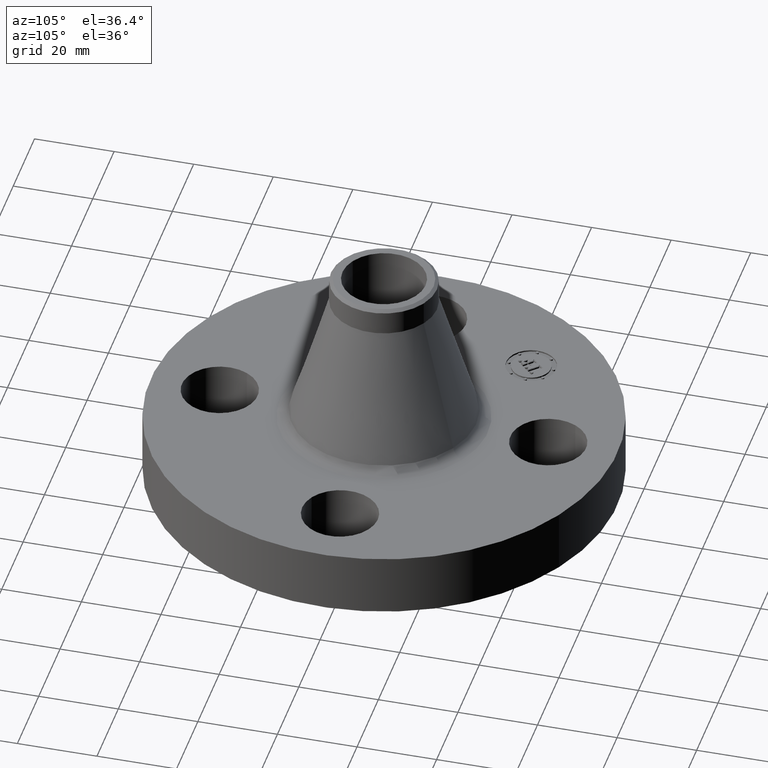
[diagram: clean part render]
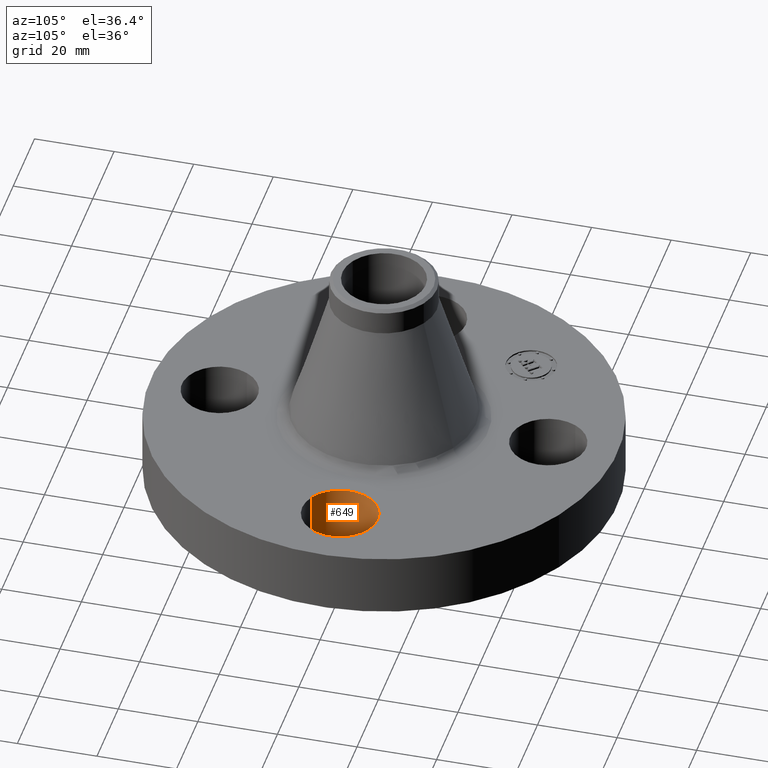
[diagram: same view with one face highlighted and labeled with its STEP entity id]
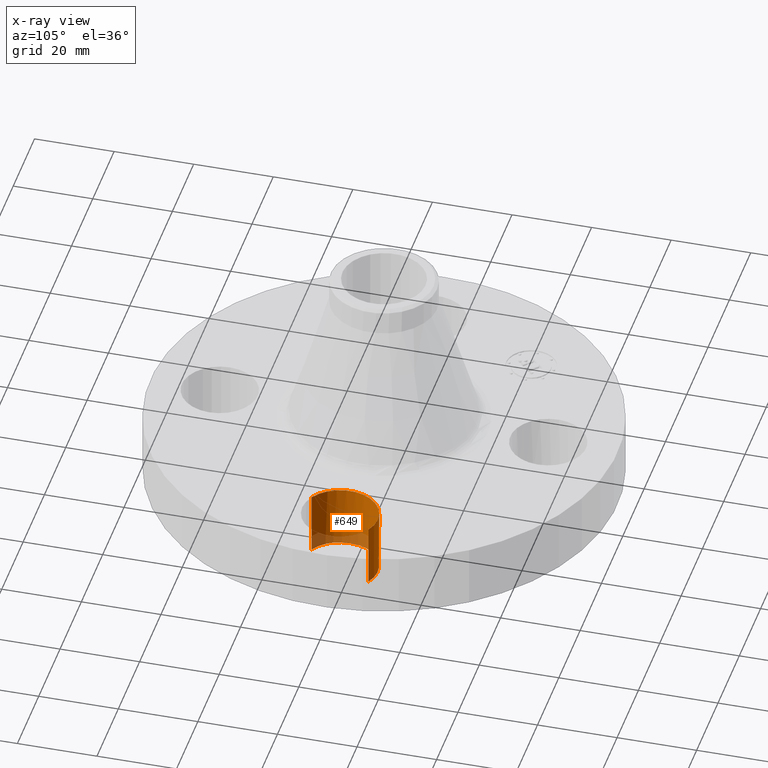
[diagram: x-ray of the same camera — body ghosted, the highlighted face saturated]
A machine part, auxiliary view. The second image highlights one B-rep face of the part: STEP entity #649.
The next image is the same camera in x-ray: the body ghosted, the highlighted face saturated — about 15% of this face is hidden behind the body in this view.
In plain terms, the highlighted cylindrical surface (partial cylindrical patch) has radius 9.525 mm, axis along (0, -0, -1).
Its self-contained STEP definition (entity closure, byte-faithful):
#549=AXIS2_PLACEMENT_3D('Circle Axis2P3D',#547,#548,$) ;
#563=AXIS2_PLACEMENT_3D('Circle Axis2P3D',#561,#562,$) ;
#609=AXIS2_PLACEMENT_3D('Cylinder Axis2P3D',#606,#607,#608) ;
#639=AXIS2_PLACEMENT_3D('Circle Axis2P3D',#637,#638,$) ;
#495=CARTESIAN_POINT('Vertex',(1.25000000001,-1.39870617276E-016,0.)) ;
#547=CARTESIAN_POINT('Axis2P3D Location',(1.62500000001,-1.39870617276E-016,0.)) ;
#551=CARTESIAN_POINT('Vertex',(1.44521542303,-0.32909346071,0.)) ;
#558=CARTESIAN_POINT('Vertex',(1.80478457698,0.32909346071,0.)) ;
#561=CARTESIAN_POINT('Axis2P3D Location',(1.62500000001,-1.39870617276E-016,0.)) ;
#606=CARTESIAN_POINT('Axis2P3D Location',(1.62500000001,-1.8023868212E-016,0.616062992128)) ;
#611=CARTESIAN_POINT('Line Origine',(1.80478457698,0.32909346071,0.310000000001)) ;
#615=CARTESIAN_POINT('Vertex',(1.80478457698,0.32909346071,0.620000000002)) ;
#618=CARTESIAN_POINT('Line Origine',(1.44521542303,-0.32909346071,0.310000000001)) ;
#622=CARTESIAN_POINT('Vertex',(1.44521542303,-0.32909346071,0.620000000002)) ;
#637=CARTESIAN_POINT('Axis2P3D Location',(1.62500000001,-1.8023868212E-016,0.620000000002)) ;
#548=DIRECTION('Axis2P3D Direction',(0.,0.,-0.0393700787402)) ;
#562=DIRECTION('Axis2P3D Direction',(0.,0.,-0.0393700787402)) ;
#607=DIRECTION('Axis2P3D Direction',(0.,-0.,-0.0393700787402)) ;
#608=DIRECTION('Axis2P3D XDirection',(-0.0188750212049,-0.0345504945626,0.)) ;
#612=DIRECTION('Vector Direction',(0.,0.,-0.0393700787402)) ;
#619=DIRECTION('Vector Direction',(0.,0.,-0.0393700787402)) ;
#638=DIRECTION('Axis2P3D Direction',(0.,-0.,-0.0393700787402)) ;
#613=VECTOR('Line Direction',#612,0.0393700787402) ;
#620=VECTOR('Line Direction',#619,0.0393700787402) ;
#643=ORIENTED_EDGE('',*,*,#624,.F.) ;
#644=ORIENTED_EDGE('',*,*,#553,.T.) ;
#645=ORIENTED_EDGE('',*,*,#565,.T.) ;
#646=ORIENTED_EDGE('',*,*,#617,.T.) ;
#647=ORIENTED_EDGE('',*,*,#641,.F.) ;
#649=ADVANCED_FACE('PartBody',(#648),#610,.F.) ;
#550=CIRCLE('generated circle',#549,0.375000000001) ;
#564=CIRCLE('generated circle',#563,0.375000000001) ;
#640=CIRCLE('generated circle',#639,0.375000000001) ;
#610=CYLINDRICAL_SURFACE('generated cylinder',#609,0.375000000001) ;
#553=EDGE_CURVE('',#552,#496,#550,.T.) ;
#565=EDGE_CURVE('',#496,#559,#564,.T.) ;
#617=EDGE_CURVE('',#559,#616,#614,.F.) ;
#624=EDGE_CURVE('',#552,#623,#621,.F.) ;
#641=EDGE_CURVE('',#623,#616,#640,.T.) ;
#642=EDGE_LOOP('',(#643,#644,#645,#646,#647)) ;
#648=FACE_OUTER_BOUND('',#642,.T.) ;
#614=LINE('Line',#611,#613) ;
#621=LINE('Line',#618,#620) ;
#496=VERTEX_POINT('',#495) ;
#552=VERTEX_POINT('',#551) ;
#559=VERTEX_POINT('',#558) ;
#616=VERTEX_POINT('',#615) ;
#623=VERTEX_POINT('',#622) ;